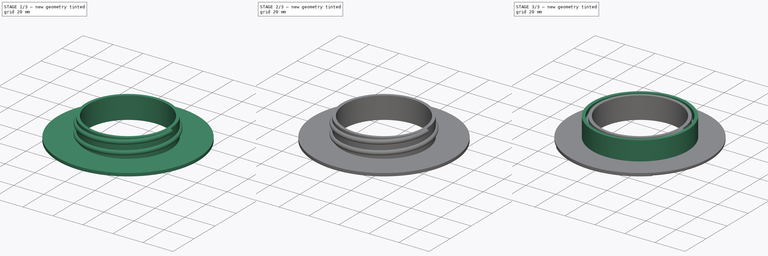
[diagram: build sequence overview — one tinted view per stage of 3, left to right]
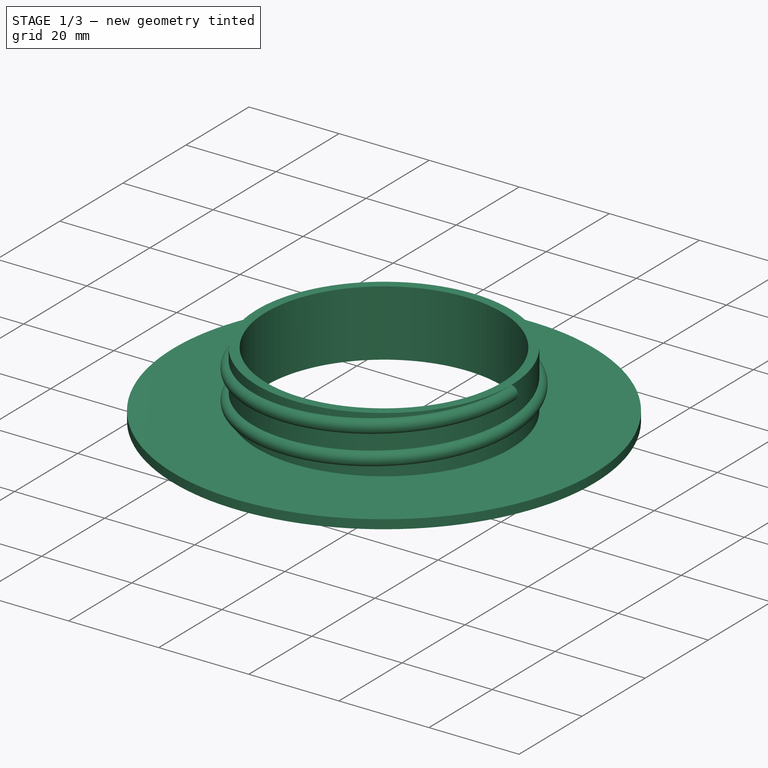
[diagram: stage 1 of 3 — iso view after this stage's code; geometry added in this stage tinted green]
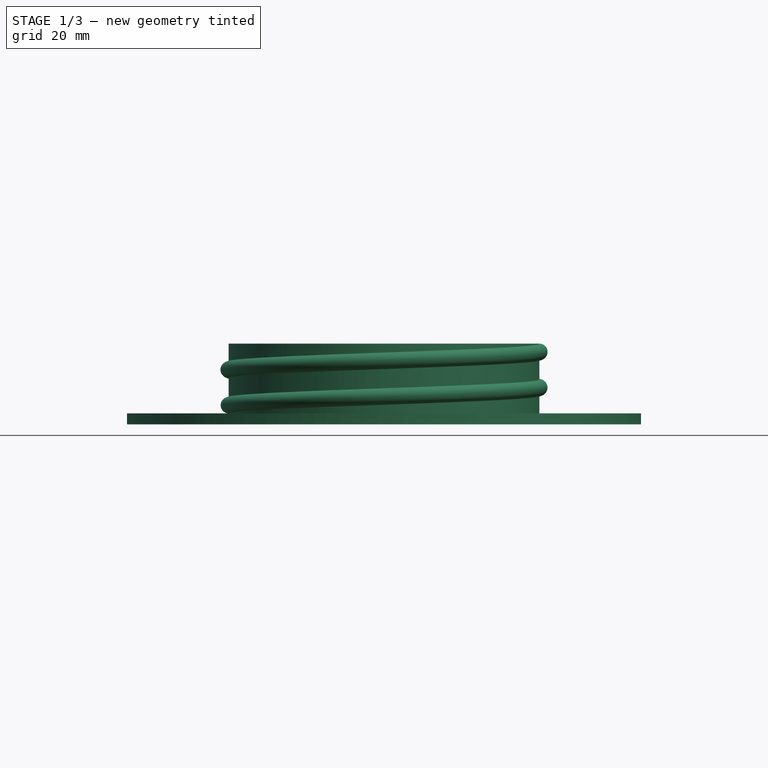
[diagram: stage 1 of 3 — front view after this stage's code; geometry added in this stage tinted green]
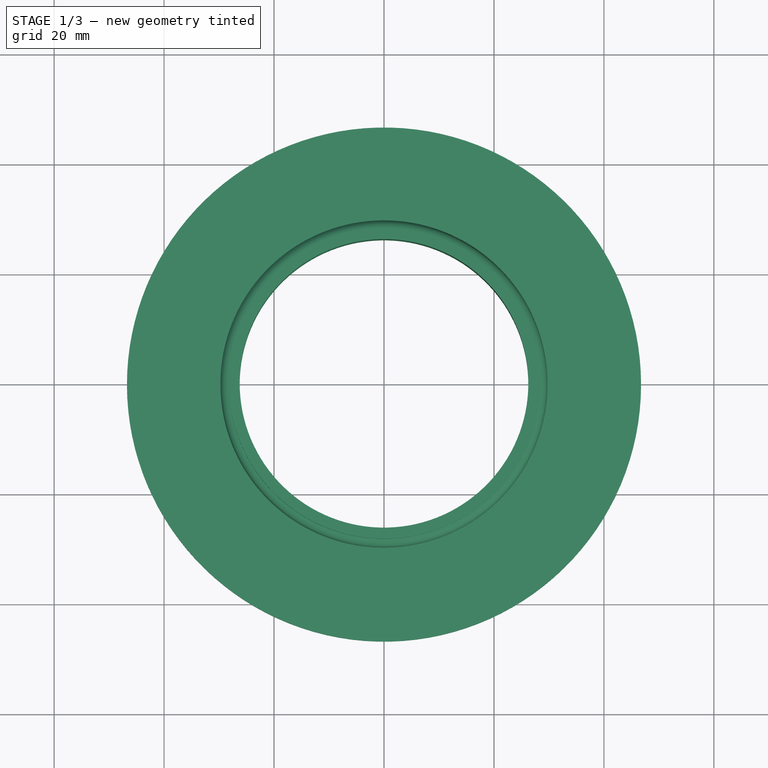
[diagram: stage 1 of 3 — top view after this stage's code; geometry added in this stage tinted green]
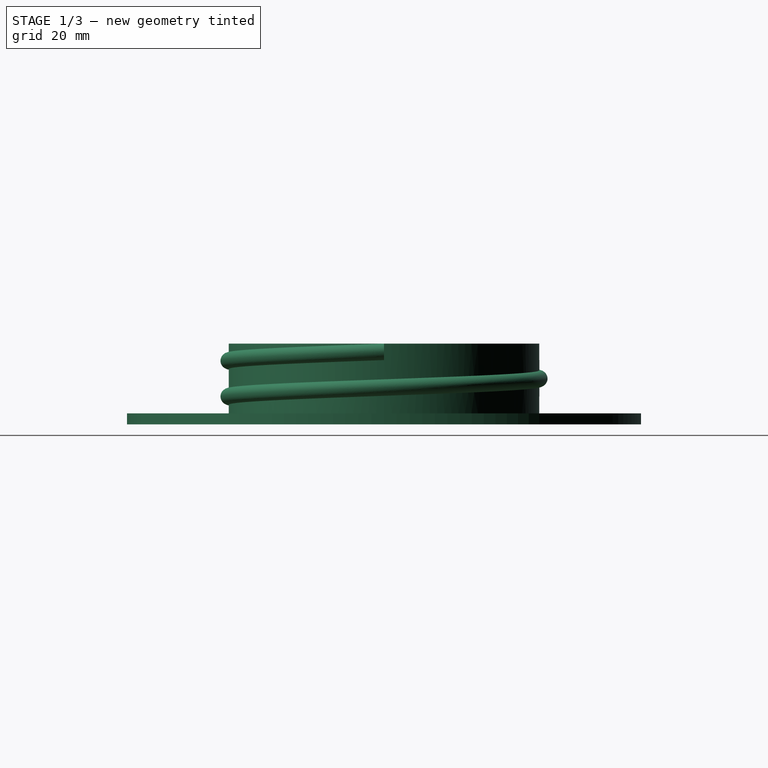
[diagram: stage 1 of 3 — right view after this stage's code; geometry added in this stage tinted green]
FCSTD DOCUMENT  (FreeCAD 2023.131R26244 +5365 (Git))
Label: Drywall Hole Protector
License: All rights reserved
LicenseURL: http://en.wikipedia.org/wiki/All_rights_reserved
objects: Sketcher::SketchObject×7, PartDesign::Pad×4, PartDesign::AdditiveHelix×2, PartDesign::Body×2, Spreadsheet::Sheet×1, PartDesign::Pocket×1, PartDesign::Fillet×1
note: 40 computed .brp shape members not serialized (recipe doc carries the construction recipe); baked Part::Feature solids carry a one-line shape summary decoded from their .brp

FEATURE [PartDesign::Body] Body  label="Back Side"
  AutoGroupSolids = false
  ClaimAllChildren = false
  ExportMode = 0
  Group = -> [Sketch,Pad,Sketch001,Pad001,Sketch002,Helix,Sketch003,Pocket]
  InvalidShape = false
  Origin = -> Origin
  Tip = -> Pocket
  TreeRank = 11
  ValidateShape = true
  _ExportChildren = -> [Pad,Pad001,Helix,Pocket]
  _GroupVersion = 1
FEATURE [Sketcher::SketchObject] Sketch004
  ArcFitTolerance = 1e-06
  AttachmentSupport = -> [XY_Plane001]
  ExternalBSplineMaxDegree = 5
  ExternalBSplineTolerance = 0.0001
  FullyConstrained = true
  InternalTolerance = 1e-06
  InvalidShape = false
  MakeInternals = false
  MapMode = 5
  Support = -> [XY_Plane001]
  TreeRank = 30
  ValidateShape = true
  expr: Constraints[1] = <<Parameters>>.Hole_Diameter + 2 * <<Parameters>>.Cover_Overhang
  expr: Constraints[3] = <<Parameters>>.Hole_Diameter - 4 * <<Parameters>>.Wall_Thickness - <<Parameters>>.Thread_Width
  sketch-geometry (2):
    g0: Circle CenterX=0 CenterY=0 CenterZ=0 NormalX=0 NormalY=0 NormalZ=1 AngleXU=0 Radius=46.75
    g1: Circle CenterX=0 CenterY=0 CenterZ=0 NormalX=0 NormalY=0 NormalZ=1 AngleXU=0 Radius=26.25
  constraints (4):
    c: Coincident(g0,g-1)
    c: Diameter(g0) = 93.5
    c: Coincident(g1,g0)
    c: Diameter(g1) = 52.5
FEATURE [PartDesign::Pad] Pad002  label="Front Cover"
  AddSubType = 0
  AlongSketchNormal = false
  AutoTaperInnerAngle = true
  CheckUpToFaceLimits = true
  ClaimChildren = false
  Direction = (0,0,1)
  Fit = 0
  FitJoin = 0
  InnerFit = 0
  InnerFitJoin = 0
  InvalidShape = false
  Length = 2
  Length2 = 100
  Linearize = true
  NewSolid = false
  Profile = -> Sketch004
  Suppress = false
  TaperInnerAngle = 0
  TaperInnerAngleRev = 0
  TreeRank = 31
  Type = 0
  ValidateShape = true
  _ProfileBasedVersion = 1
  expr: Length = <<Parameters>>.Wall_Thickness
FEATURE [Sketcher::SketchObject] Sketch005
  ArcFitTolerance = 1e-06
  AttachmentSupport = -> [Pad002]
  ExternalBSplineMaxDegree = 5
  ExternalBSplineTolerance = 0.0001
  FullyConstrained = true
  InternalTolerance = 1e-06
  InvalidShape = false
  MakeInternals = false
  MapMode = 5
  Placement = pos=(0,0,2) rot=(0,0,1;0rad)
  Support = -> [Pad002]
  TreeRank = 32
  ValidateShape = true
  expr: Constraints[1] = <<Parameters>>.Hole_Diameter - 4 * <<Parameters>>.Wall_Thickness - <<Parameters>>.Thread_Width
  expr: Constraints[3] = <<Parameters>>.Hole_Diameter - 2 * <<Parameters>>.Wall_Thickness - <<Parameters>>.Thread_Width
  sketch-geometry (2):
    g0: Circle CenterX=0 CenterY=0 CenterZ=0 NormalX=0 NormalY=0 NormalZ=1 AngleXU=0 Radius=26.25
    g1: Circle CenterX=0 CenterY=0 CenterZ=0 NormalX=0 NormalY=0 NormalZ=1 AngleXU=0 Radius=28.25
  constraints (4):
    c: Coincident(g0,g-1)
    c: Diameter(g0) = 52.5
    c: Coincident(g1,g0)
    c: Diameter(g1) = 56.5
FEATURE [PartDesign::Pad] Pad003  label="Front Thread Wall"
  AddSubType = 0
  AlongSketchNormal = false
  AutoTaperInnerAngle = true
  BaseFeature = -> Pad002
  CheckUpToFaceLimits = true
  ClaimChildren = false
  Direction = (0,0,1)
  Fit = 0
  FitJoin = 0
  InnerFit = 0
  InnerFitJoin = 0
  InvalidShape = false
  Length = 12.7
  Length2 = 100
  Linearize = true
  NewSolid = false
  Profile = -> Sketch005
  Suppress = false
  TaperInnerAngle = 0
  TaperInnerAngleRev = 0
  TreeRank = 33
  Type = 0
  ValidateShape = true
  _ProfileBasedVersion = 1
  expr: Length = <<Parameters>>.Drywall_Thickness
FEATURE [Sketcher::SketchObject] Sketch006
  ArcFitTolerance = 1e-06
  AttachmentSupport = -> [XZ_Plane001]
  ExternalBSplineMaxDegree = 5
  ExternalBSplineTolerance = 0.0001
  FullyConstrained = true
  InternalTolerance = 1e-06
  InvalidShape = false
  MakeInternals = false
  MapMode = 5
  Placement = pos=(0,0,0) rot=(1,0,0;1.5708rad)
  Support = -> [XZ_Plane001]
  TreeRank = 34
  ValidateShape = true
  expr: Constraints[4] = <<Parameters>>.Thread_Width
  expr: Constraints[5] = <<Parameters>>.Drywall_Thickness + <<Parameters>>.Wall_Thickness
  expr: Constraints[6] = (<<Parameters>>.Hole_Diameter - 2 * <<Parameters>>.Wall_Thickness - <<Parameters>>.Thread_Width) / 2 - 0.01
  sketch-geometry (2):
    g0: LineSegment StartX=28.24 StartY=14.7 StartZ=0 EndX=28.24 EndY=11.7 EndZ=0
    g1: ArcOfCircle CenterX=28.24 CenterY=13.2 CenterZ=0 NormalX=0 NormalY=0 NormalZ=1 AngleXU=0 Radius=1.5 StartAngle=4.71239 EndAngle=7.85398
  constraints (7):
    c: Vertical(g0)
    c: Coincident(g1,g0)
    c: Coincident(g1,g0)
    c: PointOnObject(g1,g0)
    c: Distance(g0,g0) = 3
    c: DistanceY(g-1,g0) = 14.7
    c: DistanceX(g-1,g0) = 28.24
FEATURE [PartDesign::AdditiveHelix] Helix001
  AddSubType = 0
  Angle = 0
  Axis = (0,-2e-16,1)
  Base = (0,0,0)
  BaseFeature = -> Pad003
  ClaimChildren = false
  Fit = 0
  FitJoin = 0
  Growth = 0
  HasBeenEdited = true
  Height = 9.7
  InnerFit = 0
  InnerFitJoin = 0
  InvalidShape = false
  LeftHanded = false
  Linearize = true
  Mode = 0
  NewSolid = false
  Outside = false
  Pitch = 6.5
  Profile = -> Sketch006
  ReferenceAxis = -> Sketch006 [V_Axis]
  Reversed = true
  Suppress = false
  TreeRank = 35
  Turns = 1.49231
  ValidateShape = true
  _ProfileBasedVersion = 1
  expr: Height = <<Parameters>>.Drywall_Thickness - <<Parameters>>.Thread_Width
  expr: Pitch = Spreadsheet.Thread_Pitch
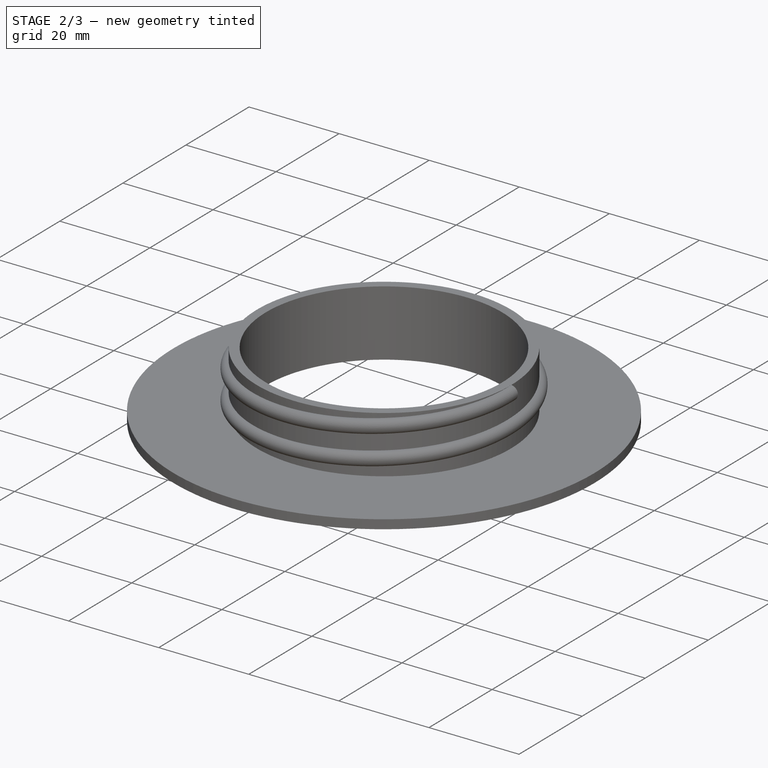
[diagram: stage 2 of 3 — iso view after this stage's code; geometry added in this stage tinted green]
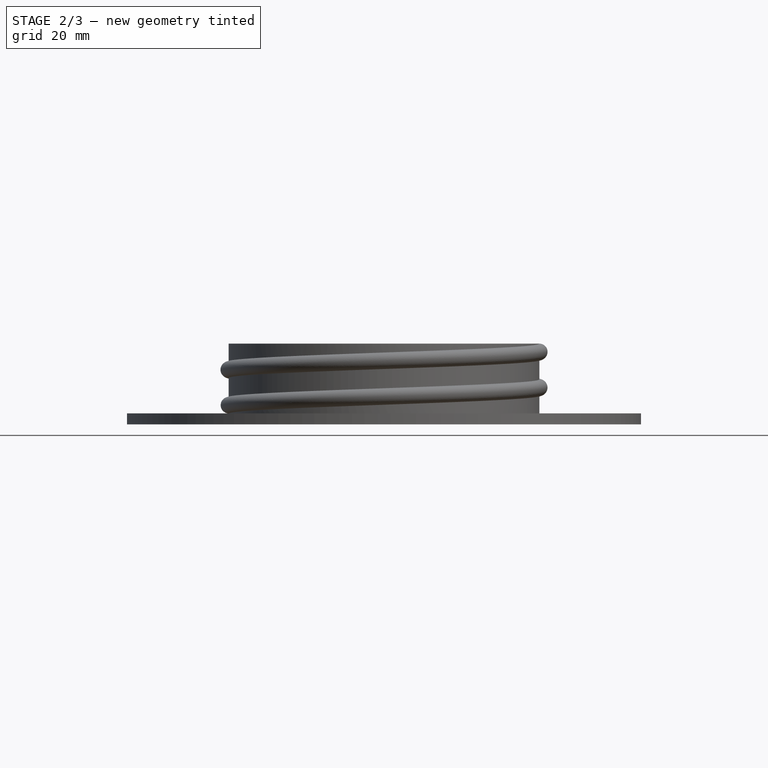
[diagram: stage 2 of 3 — front view after this stage's code; geometry added in this stage tinted green]
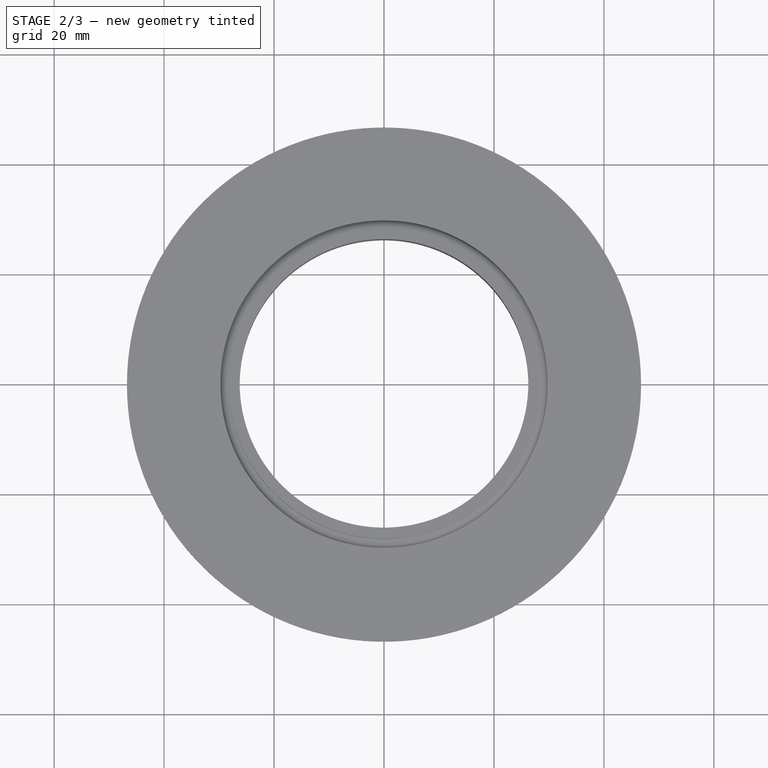
[diagram: stage 2 of 3 — top view after this stage's code; geometry added in this stage tinted green]
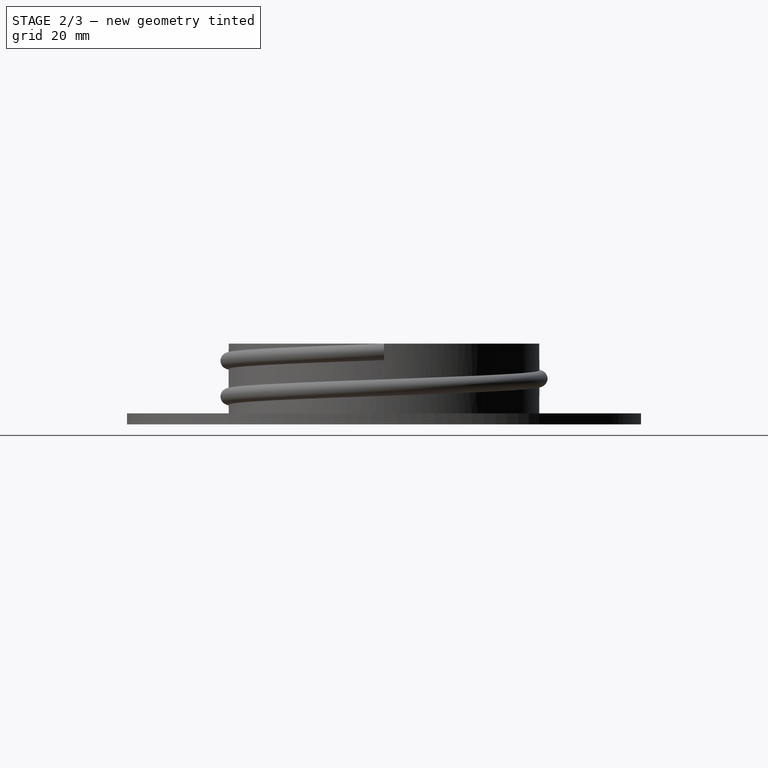
[diagram: stage 2 of 3 — right view after this stage's code; geometry added in this stage tinted green]
FEATURE [Spreadsheet::Sheet] Spreadsheet  label="Parameters"
  PythonMode = false
  ShowCells = 0
  TreeRank = 1
  cells = A1=Drywall Thickness; B1(Drywall_Thickness)=12.7; A2=Hole Diameter; B2(Hole_Diameter)=63.5; A3=Cover Overhang; B3(Cover_Overhang)=15; A4=Wall Thickness; B4(Wall_Thickness)=2; A5=Thread Width; B5(Thread_Width)=3; A6=Thread Pitch; B6(Thread_Pitch)=6.5
FEATURE [Sketcher::SketchObject] Sketch
  ArcFitTolerance = 1e-06
  AttachmentSupport = -> [XY_Plane]
  ExternalBSplineMaxDegree = 5
  ExternalBSplineTolerance = 0.0001
  FullyConstrained = true
  InternalTolerance = 1e-06
  InvalidShape = false
  MakeInternals = false
  MapMode = 5
  Support = -> [XY_Plane]
  TreeRank = 12
  ValidateShape = true
  expr: Constraints[1] = <<Parameters>>.Hole_Diameter + 2 * <<Parameters>>.Cover_Overhang
  expr: Constraints[3] = <<Parameters>>.Hole_Diameter - 2 * <<Parameters>>.Wall_Thickness
  sketch-geometry (2):
    g0: Circle CenterX=0 CenterY=0 CenterZ=0 NormalX=0 NormalY=0 NormalZ=1 AngleXU=0 Radius=46.75
    g1: Circle CenterX=0 CenterY=0 CenterZ=0 NormalX=0 NormalY=0 NormalZ=1 AngleXU=0 Radius=29.75
  constraints (4):
    c: Coincident(g0,g-1)
    c: Diameter(g0) = 93.5
    c: Coincident(g1,g0)
    c: Diameter(g1) = 59.5
FEATURE [PartDesign::Pad] Pad  label="Back Wings"
  AddSubType = 0
  AlongSketchNormal = false
  AutoTaperInnerAngle = true
  CheckUpToFaceLimits = true
  ClaimChildren = false
  Direction = (0,0,1)
  Fit = 0
  FitJoin = 0
  InnerFit = 0
  InnerFitJoin = 0
  InvalidShape = false
  Length = 2
  Length2 = 100
  Linearize = true
  NewSolid = false
  Profile = -> Sketch
  Suppress = false
  TaperInnerAngle = 0
  TaperInnerAngleRev = 0
  TreeRank = 13
  Type = 0
  ValidateShape = true
  _ProfileBasedVersion = 1
  expr: Length = <<Parameters>>.Wall_Thickness
FEATURE [PartDesign::Fillet] Fillet
  AddSubType = 0
  Base = -> Helix001 [Edge2]
  BaseFeature = -> Helix001
  InvalidShape = false
  NewSolid = false
  Radius = 1
  SupportTransform = false
  Suppress = false
  TreeRank = 36
  ValidateShape = true
FEATURE [PartDesign::Body] Body001  label="Front Side"
  AutoGroupSolids = false
  ClaimAllChildren = false
  ExportMode = 0
  Group = -> [Sketch004,Pad002,Sketch005,Pad003,Sketch006,Helix001,Fillet]
  InvalidShape = false
  Origin = -> Origin001
  Placement = pos=(-1.8e-15,0,14.7) rot=(0,1,0;3.14159rad)
  Tip = -> Fillet
  TreeRank = 29
  ValidateShape = true
  _ExportChildren = -> [Pad002,Pad003,Helix001,Fillet]
  _GroupVersion = 1
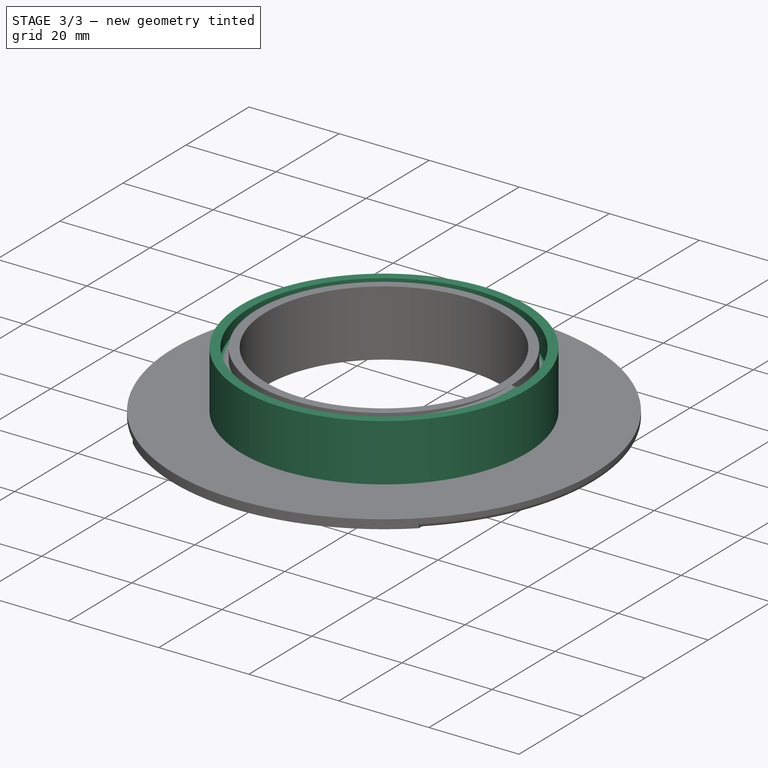
[diagram: stage 3 of 3 — iso view after this stage's code; geometry added in this stage tinted green]
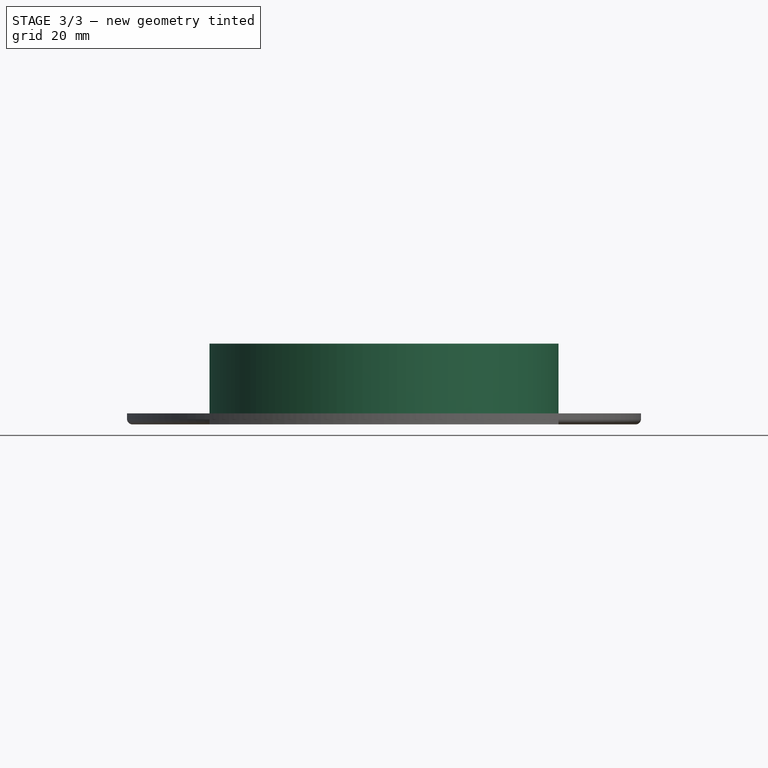
[diagram: stage 3 of 3 — front view after this stage's code; geometry added in this stage tinted green]
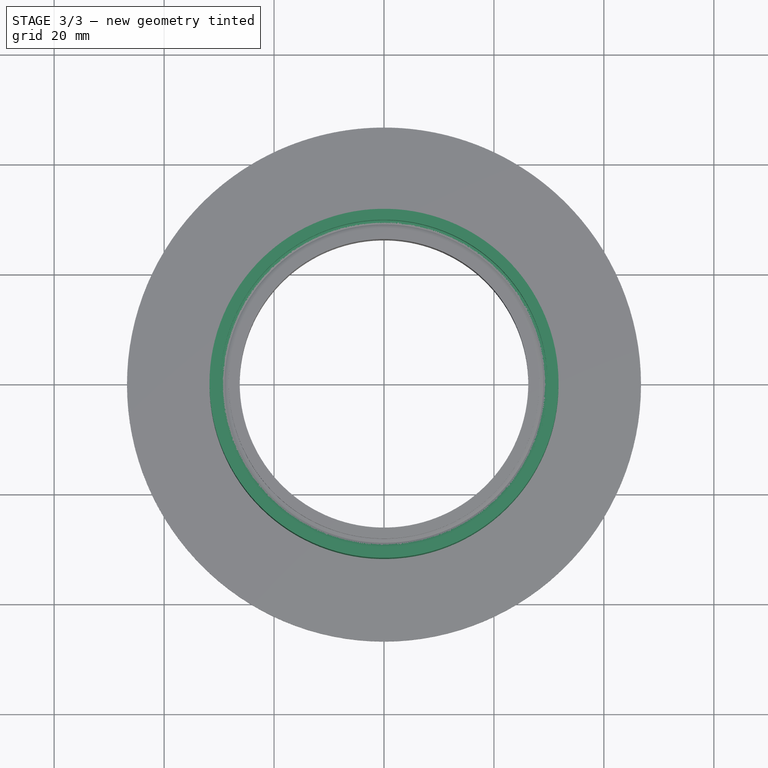
[diagram: stage 3 of 3 — top view after this stage's code; geometry added in this stage tinted green]
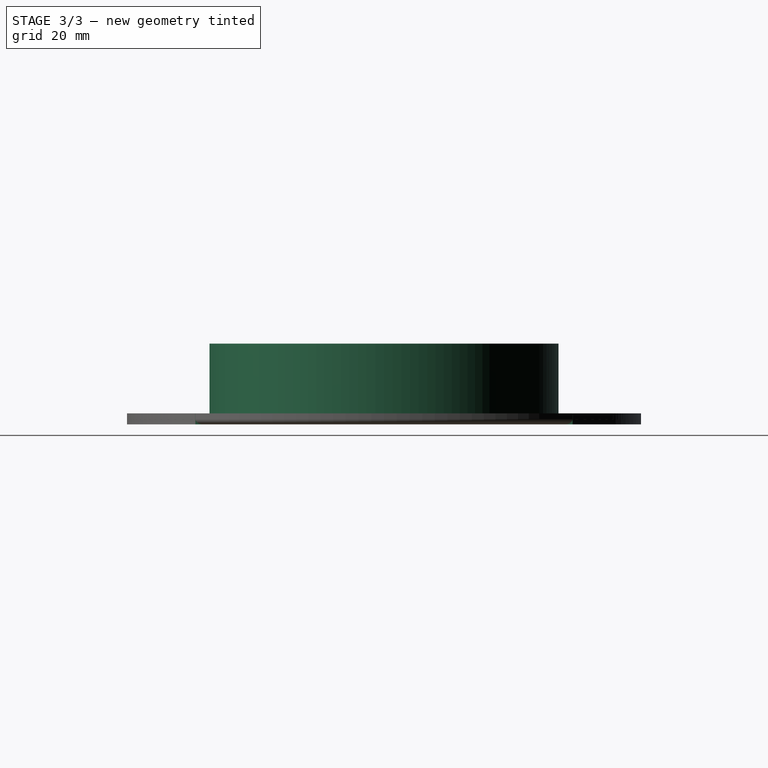
[diagram: stage 3 of 3 — right view after this stage's code; geometry added in this stage tinted green]
FEATURE [Sketcher::SketchObject] Sketch001
  ArcFitTolerance = 1e-06
  AttachmentSupport = -> [Pad]
  ExternalBSplineMaxDegree = 5
  ExternalBSplineTolerance = 0.0001
  FullyConstrained = true
  InternalTolerance = 1e-06
  InvalidShape = false
  MakeInternals = false
  MapMode = 5
  Placement = pos=(0,0,2) rot=(0,0,1;0rad)
  Support = -> [Pad]
  TreeRank = 14
  ValidateShape = true
  expr: Constraints[1] = <<Parameters>>.Hole_Diameter - 2 * <<Parameters>>.Wall_Thickness
  expr: Constraints[3] = <<Parameters>>.Hole_Diameter
  sketch-geometry (2):
    g0: Circle CenterX=0 CenterY=0 CenterZ=0 NormalX=0 NormalY=0 NormalZ=1 AngleXU=0 Radius=29.75
    g1: Circle CenterX=0 CenterY=0 CenterZ=0 NormalX=0 NormalY=0 NormalZ=1 AngleXU=0 Radius=31.75
  constraints (4):
    c: Coincident(g0,g-1)
    c: Diameter(g0) = 59.5
    c: Coincident(g1,g0)
    c: Diameter(g1) = 63.5
FEATURE [PartDesign::Pad] Pad001  label="Back Thread Wall"
  AddSubType = 0
  AlongSketchNormal = false
  AutoTaperInnerAngle = true
  BaseFeature = -> Pad
  CheckUpToFaceLimits = true
  ClaimChildren = false
  Direction = (0,0,1)
  Fit = 0
  FitJoin = 0
  InnerFit = 0
  InnerFitJoin = 0
  InvalidShape = false
  Length = 12.7
  Length2 = 100
  Linearize = true
  NewSolid = false
  Profile = -> Sketch001
  Suppress = false
  TaperInnerAngle = 0
  TaperInnerAngleRev = 0
  TreeRank = 15
  Type = 0
  ValidateShape = true
  _ProfileBasedVersion = 1
  expr: Length = <<Parameters>>.Drywall_Thickness
FEATURE [Sketcher::SketchObject] Sketch002  label="Thread Profile"
  ArcFitTolerance = 1e-06
  AttachmentSupport = -> [XZ_Plane]
  ExternalBSplineMaxDegree = 5
  ExternalBSplineTolerance = 0.0001
  FullyConstrained = true
  InternalTolerance = 1e-06
  InvalidShape = false
  MakeInternals = false
  MapMode = 5
  Placement = pos=(0,0,0) rot=(1,0,0;1.5708rad)
  Support = -> [XZ_Plane]
  TreeRank = 16
  ValidateShape = true
  expr: Constraints[1] = <<Parameters>>.Thread_Width
  expr: Constraints[5] = <<Parameters>>.Wall_Thickness + <<Parameters>>.Drywall_Thickness
  expr: Constraints[6] = <<Parameters>>.Hole_Diameter / 2 - <<Parameters>>.Wall_Thickness + 0.01
  sketch-geometry (2):
    g0: LineSegment StartX=29.76 StartY=11.7 StartZ=0 EndX=29.76 EndY=14.7 EndZ=0
    g1: ArcOfCircle CenterX=29.76 CenterY=13.2 CenterZ=0 NormalX=0 NormalY=0 NormalZ=1 AngleXU=0 Radius=1.5 StartAngle=1.5708 EndAngle=4.71239
  constraints (7):
    c: Vertical(g0)
    c: Distance(g0,g0) = 3
    c: Coincident(g1,g0)
    c: Coincident(g1,g0)
    c: PointOnObject(g1,g0)
    c: DistanceY(g-1,g0) = 14.7
    c: DistanceX(g-1,g0) = 29.76
FEATURE [PartDesign::AdditiveHelix] Helix  label="Back Threads"
  AddSubType = 0
  Angle = 0
  Axis = (0,-2e-16,1)
  Base = (0,0,0)
  BaseFeature = -> Pad001
  ClaimChildren = false
  Fit = 0
  FitJoin = 0
  Growth = 0
  HasBeenEdited = true
  Height = 11.7
  InnerFit = 0
  InnerFitJoin = 0
  InvalidShape = false
  LeftHanded = false
  Linearize = true
  Mode = 0
  NewSolid = false
  Outside = false
  Pitch = 6.5
  Profile = -> Sketch002
  ReferenceAxis = -> Sketch002 [V_Axis]
  Reversed = true
  Suppress = false
  TreeRank = 17
  Turns = 1.8
  ValidateShape = true
  _ProfileBasedVersion = 1
  expr: Height = <<Parameters>>.Drywall_Thickness - <<Parameters>>.Thread_Width + <<Parameters>>.Wall_Thickness
  expr: Pitch = Spreadsheet.Thread_Pitch
FEATURE [Sketcher::SketchObject] Sketch003
  ArcFitTolerance = 1e-06
  AttachmentSupport = -> [Helix]
  ExternalBSplineMaxDegree = 5
  ExternalBSplineTolerance = 0.0001
  FullyConstrained = true
  InternalTolerance = 1e-06
  InvalidShape = false
  MakeInternals = false
  MapMode = 5
  Placement = pos=(0,0,2) rot=(0,0,1;0rad)
  Support = -> [Helix]
  TreeRank = 18
  ValidateShape = true
  expr: Constraints[10] = <<Parameters>>.Cover_Overhang
  expr: Constraints[11] = <<Parameters>>.Hole_Diameter / 2
  expr: Constraints[22] = (<<Parameters>>.Hole_Diameter + 2 * <<Parameters>>.Cover_Overhang) / 2
  expr: Constraints[23] = <<Parameters>>.Hole_Diameter / 2
  expr: Constraints[8] = <<Parameters>>.Hole_Diameter + 2 * <<Parameters>>.Cover_Overhang
  expr: Constraints[9] = (<<Parameters>>.Hole_Diameter + 2 * <<Parameters>>.Cover_Overhang) / 2
  sketch-geometry (8):
    g0: LineSegment StartX=31.75 StartY=46.75 StartZ=0 EndX=46.75 EndY=46.75 EndZ=0
    g1: LineSegment StartX=46.75 StartY=46.75 StartZ=0 EndX=46.75 EndY=-46.75 EndZ=0
    g2: LineSegment StartX=46.75 StartY=-46.75 StartZ=0 EndX=31.75 EndY=-46.75 EndZ=0
    g3: LineSegment StartX=31.75 StartY=-46.75 StartZ=0 EndX=31.75 EndY=46.75 EndZ=0
    g4: LineSegment StartX=-31.75 StartY=46.75 StartZ=0 EndX=-46.75 EndY=46.75 EndZ=0
    g5: LineSegment StartX=-46.75 StartY=46.75 StartZ=0 EndX=-46.75 EndY=-59.45 EndZ=0
    g6: LineSegment StartX=-46.75 StartY=-59.45 StartZ=0 EndX=-31.75 EndY=-59.45 EndZ=0
    g7: LineSegment StartX=-31.75 StartY=-59.45 StartZ=0 EndX=-31.75 EndY=46.75 EndZ=0
  constraints (24):
    c: Coincident(g0,g1)
    c: Coincident(g1,g2)
    c: Coincident(g2,g3)
    c: Coincident(g3,g0)
    c: Horizontal(g0)
    c: Horizontal(g2)
    c: Vertical(g1)
    c: Vertical(g3)
    c: Distance(g0,g1) = 93.5
    c: DistanceY(g-1,g0) = 46.75
    c: Distance(g0,g0) = 15
    c: DistanceX(g-1,g2) = 31.75
    c: Coincident(g4,g5)
    c: Coincident(g5,g6)
    c: Coincident(g6,g7)
    c: Coincident(g7,g4)
    c: Horizontal(g4)
    c: Horizontal(g6)
    c: Vertical(g5)
    c: Vertical(g7)
    c: Distance(g4,g5) = 106.2
    c: Distance(g4,g4) = 15
    c: DistanceY(g-1,g4) = 46.75
    c: DistanceX(g6,g-1) = 31.75
FEATURE [PartDesign::Pocket] Pocket
  AddSubType = 1
  AutoTaperInnerAngle = true
  BaseFeature = -> Helix
  CheckUpToFaceLimits = true
  ClaimChildren = false
  Fit = 0
  FitJoin = 0
  InnerFit = 0
  InnerFitJoin = 0
  InvalidShape = false
  Length = 5
  Length2 = 100
  Linearize = true
  NewSolid = false
  Profile = -> Sketch003
  Suppress = false
  TaperInnerAngle = 0
  TaperInnerAngleRev = 0
  TreeRank = 19
  Type = 1
  ValidateShape = true
  _ProfileBasedVersion = 1
  _Version = 1
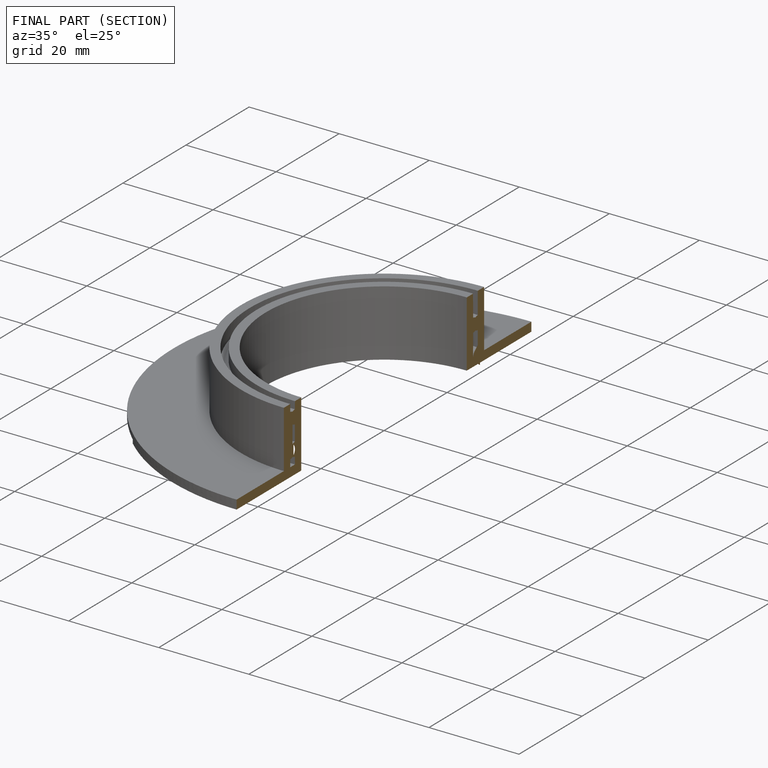
[diagram: finished part — half-section view (interior)]
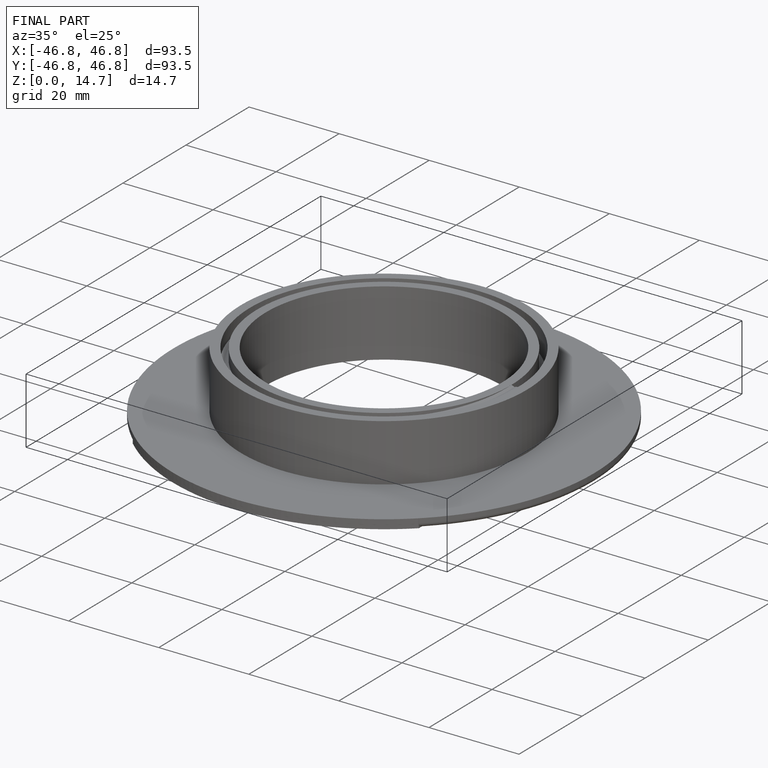
[diagram: finished part — iso view with bounding-box wireframe]
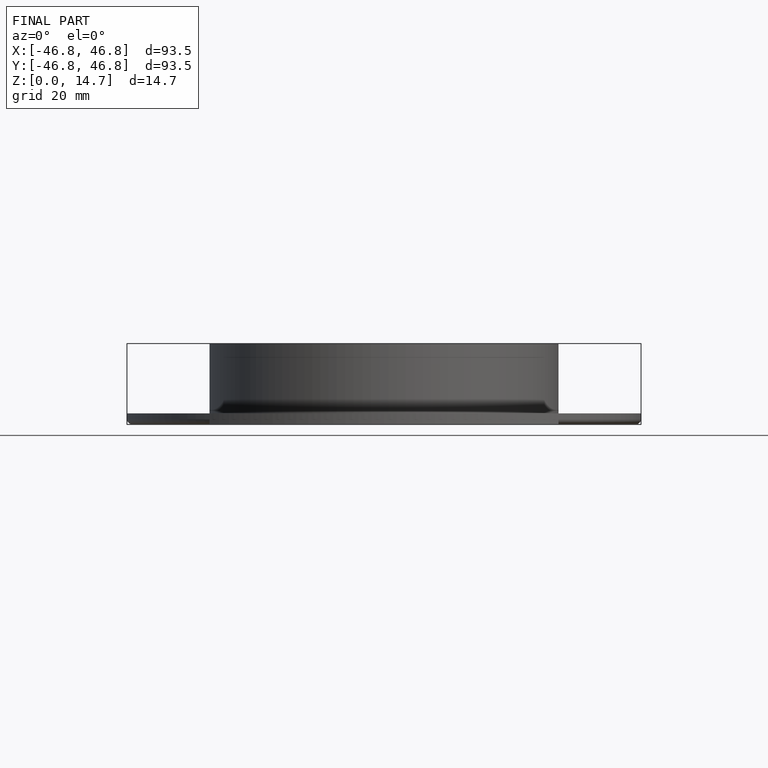
[diagram: finished part — front view with bounding-box wireframe]
